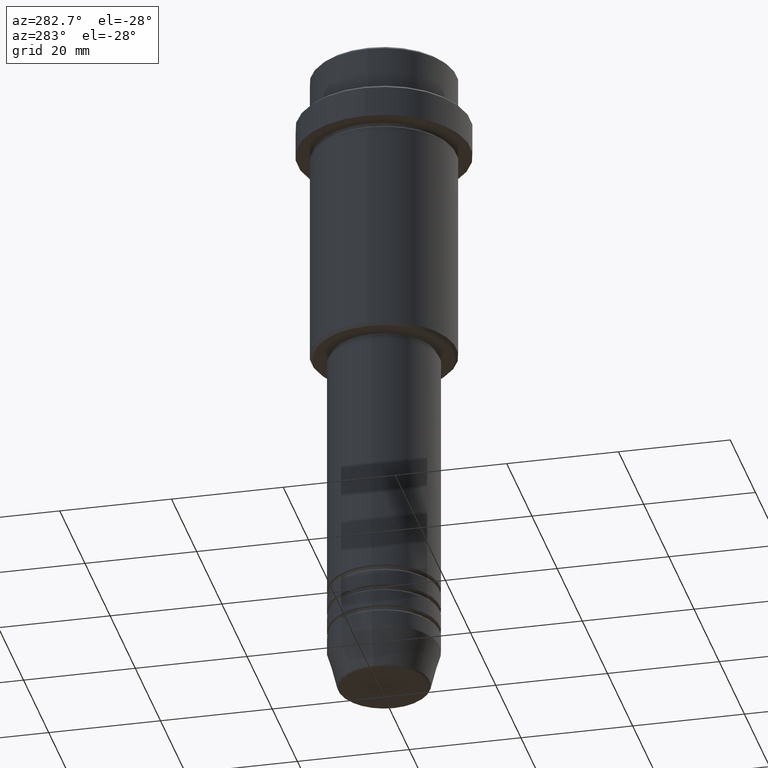
[diagram: clean part render]
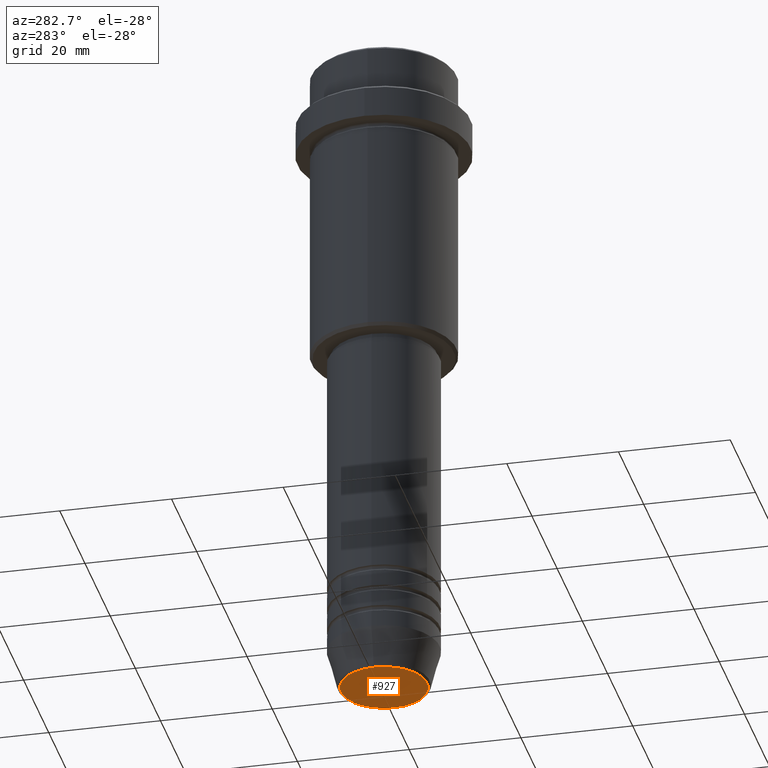
[diagram: same view with one face highlighted and labeled with its STEP entity id]
A machine part, auxiliary view. The second image highlights one B-rep face of the part: STEP entity #927.
In plain terms, the highlighted planar face has unit normal (0, -0, 1).
Its self-contained STEP definition (entity closure, byte-faithful):
#29 = DIRECTION ( 'NONE',  ( 0.000000000000000000, 0.000000000000000000, -1.000000000000000000 ) ) ;
#80 = EDGE_CURVE ( 'NONE', #677, #794, #316, .T. ) ;
#170 = FACE_OUTER_BOUND ( 'NONE', #1160, .T. ) ;
#316 = CIRCLE ( 'NONE', #1116, 7.740692158992658278 ) ;
#398 = DIRECTION ( 'NONE',  ( 0.000000000000000000, 0.000000000000000000, -1.000000000000000000 ) ) ;
#473 = DIRECTION ( 'NONE',  ( 1.000000000000000000, 0.000000000000000000, 0.000000000000000000 ) ) ;
#512 = CARTESIAN_POINT ( 'NONE',  ( 0.000000000000000000, 0.000000000000000000, -120.0000000000000000 ) ) ;
#541 = DIRECTION ( 'NONE',  ( 0.000000000000000000, -0.000000000000000000, 1.000000000000000000 ) ) ;
#610 = PLANE ( 'NONE',  #644 ) ;
#644 = AXIS2_PLACEMENT_3D ( 'NONE', #512, #541, #1065 ) ;
#677 = VERTEX_POINT ( 'NONE', #1314 ) ;
#762 = AXIS2_PLACEMENT_3D ( 'NONE', #1147, #29, #473 ) ;
#794 = VERTEX_POINT ( 'NONE', #1323 ) ;
#927 = ADVANCED_FACE ( 'NONE', ( #170 ), #610, .F. ) ;
#965 = DIRECTION ( 'NONE',  ( 1.000000000000000000, 0.000000000000000000, 0.000000000000000000 ) ) ;
#1046 = ORIENTED_EDGE ( 'NONE', *, *, #80, .T. ) ;
#1065 = DIRECTION ( 'NONE',  ( 1.000000000000000000, 0.000000000000000000, 0.000000000000000000 ) ) ;
#1116 = AXIS2_PLACEMENT_3D ( 'NONE', #1377, #398, #965 ) ;
#1147 = CARTESIAN_POINT ( 'NONE',  ( 0.000000000000000000, 0.000000000000000000, -120.0000000000000000 ) ) ;
#1160 = EDGE_LOOP ( 'NONE', ( #1046, #1339 ) ) ;
#1314 = CARTESIAN_POINT ( 'NONE',  ( 7.740692158992658278, 0.000000000000000000, -120.0000000000000000 ) ) ;
#1323 = CARTESIAN_POINT ( 'NONE',  ( -7.740692158992658278, 9.775343368540041107E-16, -120.0000000000000000 ) ) ;
#1339 = ORIENTED_EDGE ( 'NONE', *, *, #1343, .T. ) ;
#1343 = EDGE_CURVE ( 'NONE', #794, #677, #1375, .T. ) ;
#1375 = CIRCLE ( 'NONE', #762, 7.740692158992658278 ) ;
#1377 = CARTESIAN_POINT ( 'NONE',  ( 0.000000000000000000, 0.000000000000000000, -120.0000000000000000 ) ) ;